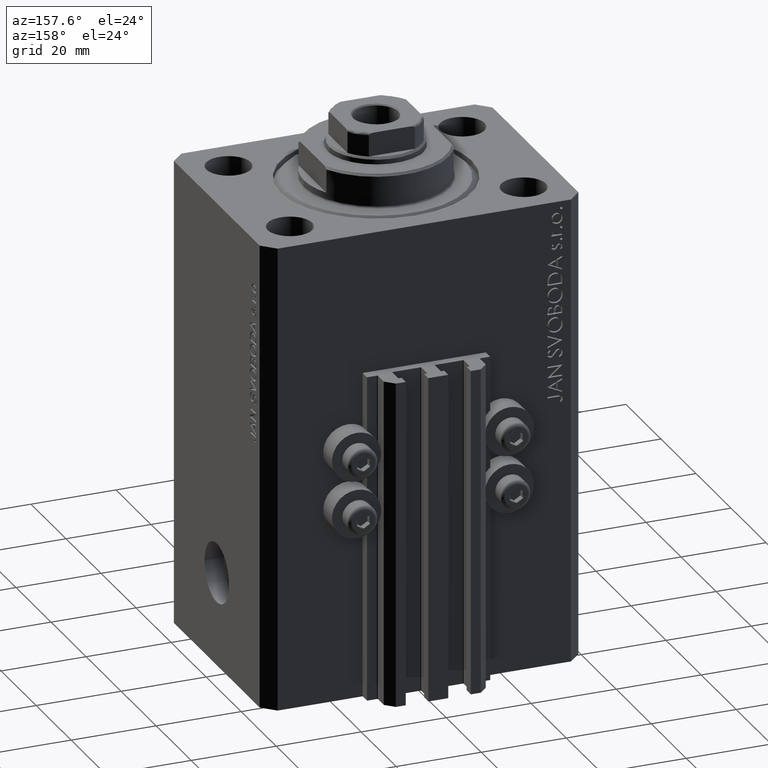
[diagram: clean part render]
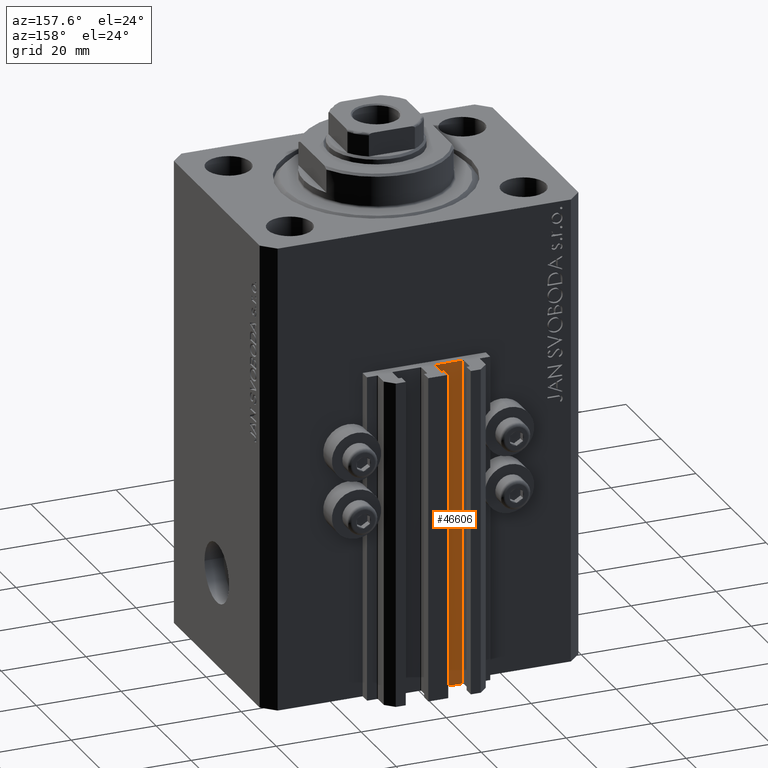
[diagram: same view with one face highlighted and labeled with its STEP entity id]
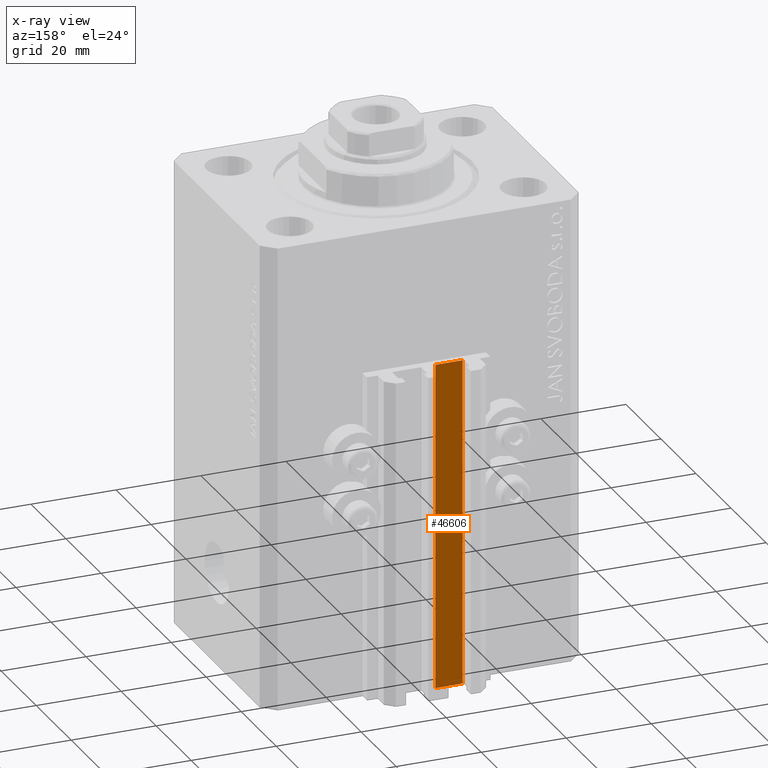
[diagram: x-ray of the same camera — body ghosted, the highlighted face saturated]
A machine part, auxiliary view. The second image highlights one B-rep face of the part: STEP entity #46606.
The next image is the same camera in x-ray: the body ghosted, the highlighted face saturated — about 0% of this face is hidden behind the body in this view.
In plain terms, the highlighted planar face has unit normal (0, 1, 0).
Its self-contained STEP definition (entity closure, byte-faithful):
#7 = EDGE_CURVE ( 'NONE', #5602, #21028, #29436, .T. ) ;
#285 = FACE_OUTER_BOUND ( 'NONE', #26346, .T. ) ;
#315 = CARTESIAN_POINT ( 'NONE',  ( -8.199999999999997513, 29.50000000000000355, -110.0000000000000000 ) ) ;
#1392 = VERTEX_POINT ( 'NONE', #315 ) ;
#1530 = VECTOR ( 'NONE', #17200, 1000.000000000000000 ) ;
#3173 = CARTESIAN_POINT ( 'NONE',  ( -1.800000000000000933, 29.50000000000000355, -110.0000000000000000 ) ) ;
#3347 = VERTEX_POINT ( 'NONE', #44369 ) ;
#3404 = DIRECTION ( 'NONE',  ( -1.000000000000000000, 0.000000000000000000, 0.000000000000000000 ) ) ;
#5602 = VERTEX_POINT ( 'NONE', #6135 ) ;
#6135 = CARTESIAN_POINT ( 'NONE',  ( -1.800000000000000933, 29.50000000000000355, -33.00000000000000000 ) ) ;
#7065 = ORIENTED_EDGE ( 'NONE', *, *, #7, .F. ) ;
#8417 = DIRECTION ( 'NONE',  ( 0.000000000000000000, 1.000000000000000000, -0.000000000000000000 ) ) ;
#9527 = EDGE_CURVE ( 'NONE', #1392, #21028, #41447, .T. ) ;
#11005 = CARTESIAN_POINT ( 'NONE',  ( -1.800000000000000933, 29.50000000000000355, -33.00000000000000000 ) ) ;
#13971 = ORIENTED_EDGE ( 'NONE', *, *, #9527, .T. ) ;
#17200 = DIRECTION ( 'NONE',  ( 0.000000000000000000, 0.000000000000000000, 1.000000000000000000 ) ) ;
#19893 = CARTESIAN_POINT ( 'NONE',  ( -8.199999999999997513, 29.50000000000000355, -110.0000000000000000 ) ) ;
#21028 = VERTEX_POINT ( 'NONE', #41050 ) ;
#21509 = CARTESIAN_POINT ( 'NONE',  ( -1.800000000000000933, 29.50000000000000355, -110.0000000000000000 ) ) ;
#24036 = VECTOR ( 'NONE', #25604, 1000.000000000000000 ) ;
#25107 = LINE ( 'NONE', #21509, #1530 ) ;
#25604 = DIRECTION ( 'NONE',  ( -1.000000000000000000, 0.000000000000000000, 0.000000000000000000 ) ) ;
#25655 = CARTESIAN_POINT ( 'NONE',  ( -1.800000000000000933, 29.50000000000000355, -110.0000000000000000 ) ) ;
#26346 = EDGE_LOOP ( 'NONE', ( #7065, #41828, #44802, #13971 ) ) ;
#27541 = VECTOR ( 'NONE', #3404, 1000.000000000000000 ) ;
#29436 = LINE ( 'NONE', #11005, #24036 ) ;
#30897 = DIRECTION ( 'NONE',  ( 0.000000000000000000, 0.000000000000000000, 1.000000000000000000 ) ) ;
#35049 = VECTOR ( 'NONE', #30897, 1000.000000000000000 ) ;
#35957 = PLANE ( 'NONE',  #45897 ) ;
#36667 = LINE ( 'NONE', #25655, #27541 ) ;
#41050 = CARTESIAN_POINT ( 'NONE',  ( -8.199999999999997513, 29.50000000000000355, -33.00000000000000000 ) ) ;
#41447 = LINE ( 'NONE', #19893, #35049 ) ;
#41828 = ORIENTED_EDGE ( 'NONE', *, *, #44920, .F. ) ;
#44369 = CARTESIAN_POINT ( 'NONE',  ( -1.800000000000000933, 29.50000000000000355, -110.0000000000000000 ) ) ;
#44543 = DIRECTION ( 'NONE',  ( 0.000000000000000000, 0.000000000000000000, 1.000000000000000000 ) ) ;
#44802 = ORIENTED_EDGE ( 'NONE', *, *, #46463, .T. ) ;
#44920 = EDGE_CURVE ( 'NONE', #3347, #5602, #25107, .T. ) ;
#45897 = AXIS2_PLACEMENT_3D ( 'NONE', #3173, #8417, #44543 ) ;
#46463 = EDGE_CURVE ( 'NONE', #3347, #1392, #36667, .T. ) ;
#46606 = ADVANCED_FACE ( 'NONE', ( #285 ), #35957, .T. ) ;